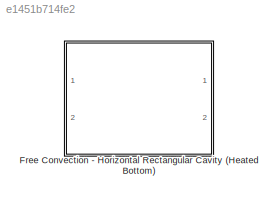
MODEL slx_e1451b714fe2
KIND library
CONFIG AbsTol = auto
CONFIG FixedStep = auto
CONFIG MaxStep = auto
CONFIG MinStep = auto
CONFIG RelTol = 1e-3
CONFIG SampleTimeConstraint = Unconstrained
CONFIG Solver = ode45
CONFIG SolverMode = Auto
CONFIG SolverName = ode45
CONFIG StartTime = 0.0
CONFIG StopTime = 10.0
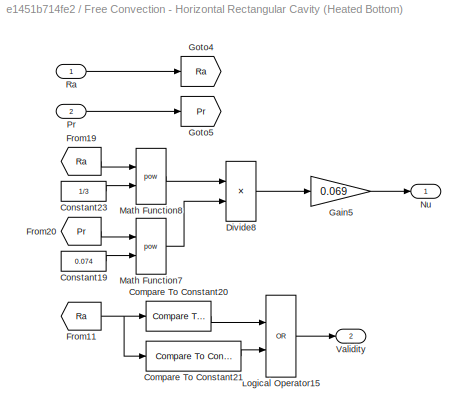
BLOCK [SubSystem] Free Convection - Horizontal Rectangular Cavity (Heated Bottom)
  Ports = [2, 2]
  RequestExecContextInheritance = off
BLOCK [Reference] Free Convection - Horizontal Rectangular Cavity (Heated Bottom)/Compare To Constant20  REF=simulink/Logic and Bit
Operations/Compare
To Constant
  OutDataTypeStr = boolean
  Ports = [1, 1]
  SourceBlock = simulink/Logic and Bit\nOperations/Compare\nTo Constant
  SourceType = Compare To Constant
  ZeroCross = on
  const = 3*10^5
  relop = <
BLOCK [Reference] Free Convection - Horizontal Rectangular Cavity (Heated Bottom)/Compare To Constant21  REF=simulink/Logic and Bit
Operations/Compare
To Constant
  OutDataTypeStr = boolean
  Ports = [1, 1]
  SourceBlock = simulink/Logic and Bit\nOperations/Compare\nTo Constant
  SourceType = Compare To Constant
  ZeroCross = on
  const = 7*10^9
  relop = >
BLOCK [Constant] Free Convection - Horizontal Rectangular Cavity (Heated Bottom)/Constant19
  Value = 0.074
BLOCK [Constant] Free Convection - Horizontal Rectangular Cavity (Heated Bottom)/Constant23
  Value = 1/3
BLOCK [Product] Free Convection - Horizontal Rectangular Cavity (Heated Bottom)/Divide8
  InputSameDT = off
  Inputs = **
  OutDataTypeStr = Inherit: Inherit via internal rule
  Ports = [2, 1]
  RndMeth = Floor
  SaturateOnIntegerOverflow = off
BLOCK [From] Free Convection - Horizontal Rectangular Cavity (Heated Bottom)/From11
  GotoTag = Ra
BLOCK [From] Free Convection - Horizontal Rectangular Cavity (Heated Bottom)/From19
  GotoTag = Ra
BLOCK [From] Free Convection - Horizontal Rectangular Cavity (Heated Bottom)/From20
  GotoTag = Pr
BLOCK [Gain] Free Convection - Horizontal Rectangular Cavity (Heated Bottom)/Gain5
  Gain = 0.069
  OutDataTypeStr = Inherit: Inherit via internal rule
  ParamDataTypeStr = Inherit: Inherit via internal rule
  SaturateOnIntegerOverflow = off
BLOCK [Goto] Free Convection - Horizontal Rectangular Cavity (Heated Bottom)/Goto4
  GotoTag = Ra
BLOCK [Goto] Free Convection - Horizontal Rectangular Cavity (Heated Bottom)/Goto5
  GotoTag = Pr
BLOCK [Logic] Free Convection - Horizontal Rectangular Cavity (Heated Bottom)/Logical Operator15
  AllPortsSameDT = off
  Operator = OR
  OutDataTypeStr = boolean
  Ports = [2, 1]
BLOCK [Math] Free Convection - Horizontal Rectangular Cavity (Heated Bottom)/Math Function7
  Operator = pow
  Ports = [2, 1]
BLOCK [Math] Free Convection - Horizontal Rectangular Cavity (Heated Bottom)/Math Function8
  Operator = pow
  Ports = [2, 1]
BLOCK [Outport] Free Convection - Horizontal Rectangular Cavity (Heated Bottom)/Nu
  IconDisplay = Port number
BLOCK [Inport] Free Convection - Horizontal Rectangular Cavity (Heated Bottom)/Pr
  IconDisplay = Port number
  Port = 2
BLOCK [Inport] Free Convection - Horizontal Rectangular Cavity (Heated Bottom)/Ra
  IconDisplay = Port number
BLOCK [Outport] Free Convection - Horizontal Rectangular Cavity (Heated Bottom)/Validity
  IconDisplay = Port number
  Port = 2
LINE Free Convection - Horizontal Rectangular Cavity (Heated Bottom)/Compare To Constant20:1 -> Free Convection - Horizontal Rectangular Cavity (Heated Bottom)/Logical Operator15:1
LINE Free Convection - Horizontal Rectangular Cavity (Heated Bottom)/Compare To Constant21:1 -> Free Convection - Horizontal Rectangular Cavity (Heated Bottom)/Logical Operator15:2
LINE Free Convection - Horizontal Rectangular Cavity (Heated Bottom)/Constant19:1 -> Free Convection - Horizontal Rectangular Cavity (Heated Bottom)/Math Function7:2
LINE Free Convection - Horizontal Rectangular Cavity (Heated Bottom)/Constant23:1 -> Free Convection - Horizontal Rectangular Cavity (Heated Bottom)/Math Function8:2
LINE Free Convection - Horizontal Rectangular Cavity (Heated Bottom)/Divide8:1 -> Free Convection - Horizontal Rectangular Cavity (Heated Bottom)/Gain5:1
NET Free Convection - Horizontal Rectangular Cavity (Heated Bottom)/From11:1 -> Free Convection - Horizontal Rectangular Cavity (Heated Bottom)/Compare To Constant20:1, Free Convection - Horizontal Rectangular Cavity (Heated Bottom)/Compare To Constant21:1
LINE Free Convection - Horizontal Rectangular Cavity (Heated Bottom)/From19:1 -> Free Convection - Horizontal Rectangular Cavity (Heated Bottom)/Math Function8:1
LINE Free Convection - Horizontal Rectangular Cavity (Heated Bottom)/From20:1 -> Free Convection - Horizontal Rectangular Cavity (Heated Bottom)/Math Function7:1
LINE Free Convection - Horizontal Rectangular Cavity (Heated Bottom)/Gain5:1 -> Free Convection - Horizontal Rectangular Cavity (Heated Bottom)/Nu:1
LINE Free Convection - Horizontal Rectangular Cavity (Heated Bottom)/Logical Operator15:1 -> Free Convection - Horizontal Rectangular Cavity (Heated Bottom)/Validity:1
LINE Free Convection - Horizontal Rectangular Cavity (Heated Bottom)/Math Function7:1 -> Free Convection - Horizontal Rectangular Cavity (Heated Bottom)/Divide8:2
LINE Free Convection - Horizontal Rectangular Cavity (Heated Bottom)/Math Function8:1 -> Free Convection - Horizontal Rectangular Cavity (Heated Bottom)/Divide8:1
LINE Free Convection - Horizontal Rectangular Cavity (Heated Bottom)/Pr:1 -> Free Convection - Horizontal Rectangular Cavity (Heated Bottom)/Goto5:1
LINE Free Convection - Horizontal Rectangular Cavity (Heated Bottom)/Ra:1 -> Free Convection - Horizontal Rectangular Cavity (Heated Bottom)/Goto4:1
note: NET lines group one-source signal fan-out (src -> all destinations, sorted); 1:1 wires keep LINE
